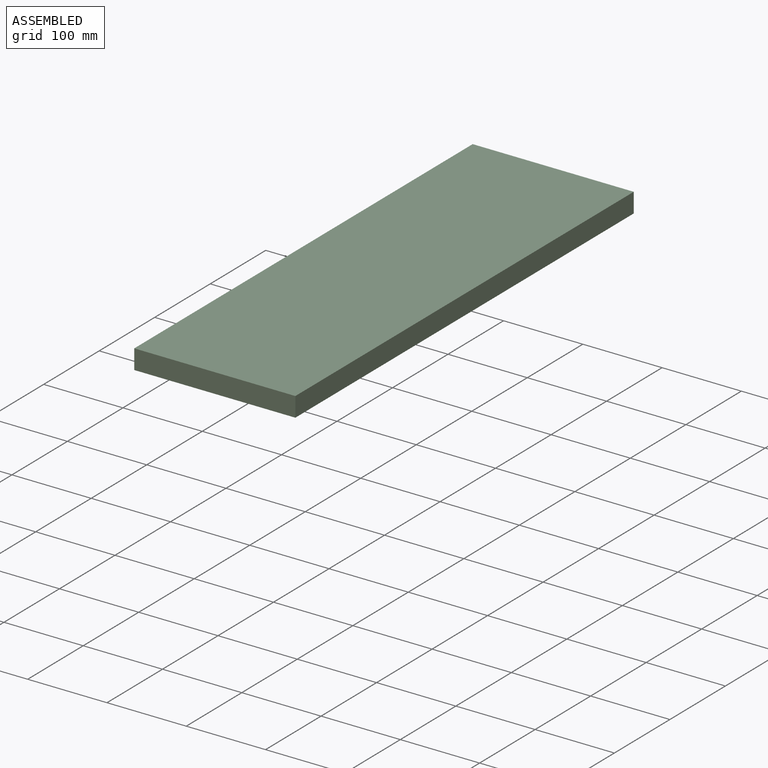
[diagram: assembled view]
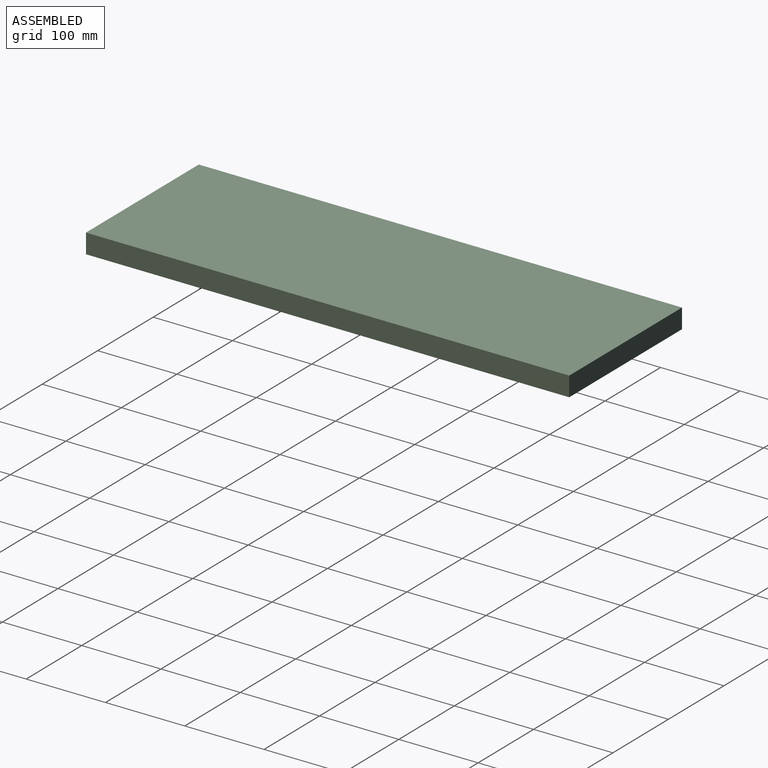
[diagram: assembled view, second angle]
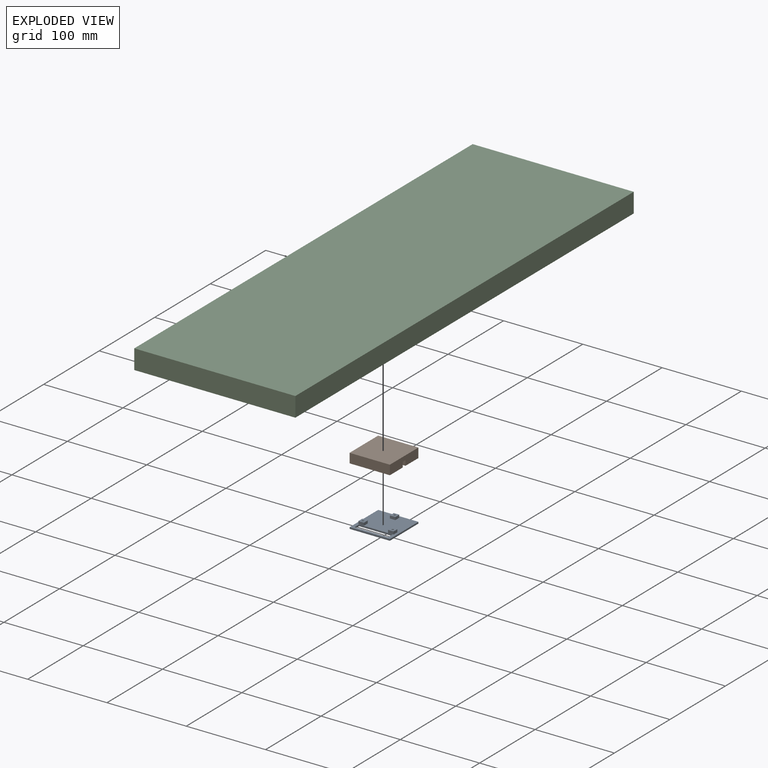
[diagram: exploded view]
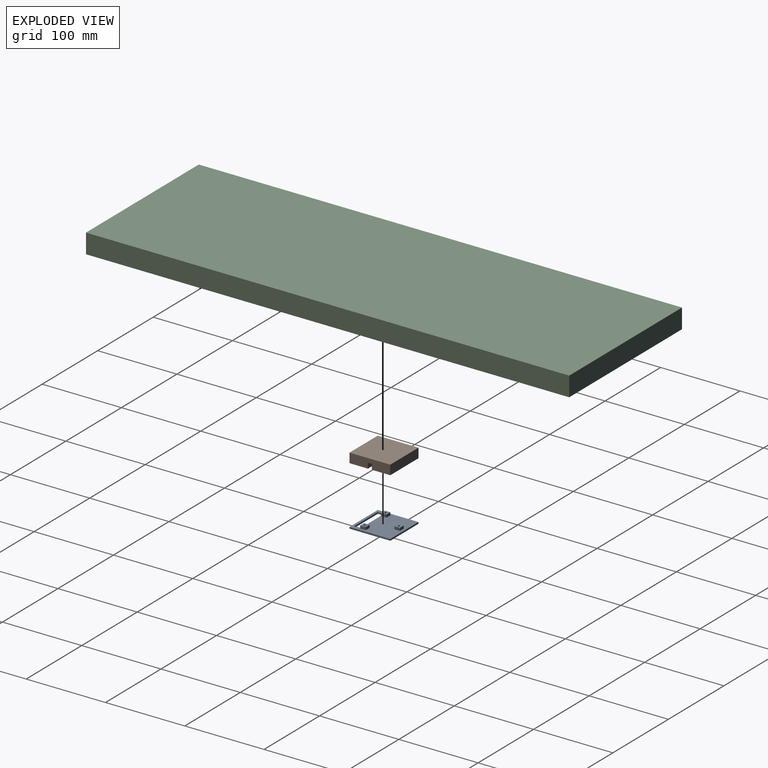
[diagram: exploded view, second angle]
ASSEMBLY  parts=3 mates=2
PART A: 31 faces, bbox 50.8x51.4x5.5 mm
  f0: plane 51.4x50.8mm, normal (0,0,1), area 2124.9mm2, adj f1,f2,f3,f4,f5,f6,f9,f10
  f1: plane 42.4x2mm, normal (0,-1,0), area 84.8mm2, adj f0,f2,f9,f12
  f2: plane 8x2mm, normal (1,0,0), area 16mm2, adj f0,f1,f3,f12
  f3: plane 42.4x2mm, normal (0,1,0), area 84.8mm2, adj f0,f2,f9,f12
  f4: plane 50.8x2mm, normal (0,-1,0), area 101.6mm2, adj f0,f5,f10,f12
  f5: plane 51.4x2mm, normal (-1,0,0), area 102.8mm2, adj f0,f4,f6,f12
  f6: plane 50.8x2mm, normal (0,1,0), area 101.6mm2, adj f0,f5,f10,f12
  f7: cylinder r=1.25mm len=4.5mm, axis (0,0,1), area 35.3mm2, adj f17,f30
  f8: cylinder r=1.25mm len=4.5mm, axis (0,0,1), area 35.3mm2, adj f22,f28
  f9: plane 8x2mm, normal (-1,0,0), area 16mm2, adj f0,f1,f3,f12
  f10: plane 51.4x2mm, normal (1,0,0), area 102.8mm2, adj f0,f4,f6,f12
  f11: cylinder r=1.25mm len=4.5mm, axis (0,0,1), area 35.3mm2, adj f27,f29
  f12: plane 51.4x50.8mm, normal (0,0,-1), area 2224.2mm2, adj f1,f2,f3,f4,f5,f6,f9,f10
  f13: plane 7x3.5mm, normal (0,1,0), area 24.5mm2, adj f0,f14,f16,f17
  f14: plane 7x3.5mm, normal (1,0,0), area 24.5mm2, adj f0,f13,f15,f17
  f15: plane 7x3.5mm, normal (0,-1,0), area 24.5mm2, adj f0,f14,f16,f17
  f16: plane 7x3.5mm, normal (-1,0,0), area 24.5mm2, adj f0,f13,f15,f17
  f17: plane 7x7mm, normal (0,0,1), area 44.1mm2, adj f7,f13,f14,f15,f16
  f18: plane 7x3.5mm, normal (0,1,0), area 24.5mm2, adj f0,f19,f21,f22
  f19: plane 7x3.5mm, normal (1,0,0), area 24.5mm2, adj f0,f18,f20,f22
  f20: plane 7x3.5mm, normal (0,-1,0), area 24.5mm2, adj f0,f19,f21,f22
  f21: plane 7x3.5mm, normal (-1,0,0), area 24.5mm2, adj f0,f18,f20,f22
  f22: plane 7x7mm, normal (0,0,1), area 44.1mm2, adj f8,f18,f19,f20,f21
  f23: plane 7x3.5mm, normal (0,1,0), area 24.5mm2, adj f0,f24,f26,f27
  f24: plane 7x3.5mm, normal (1,0,0), area 24.5mm2, adj f0,f23,f25,f27
  f25: plane 7x3.5mm, normal (0,-1,0), area 24.5mm2, adj f0,f24,f26,f27
  f26: plane 7x3.5mm, normal (-1,0,0), area 24.5mm2, adj f0,f23,f25,f27
  f27: plane 7x7mm, normal (0,0,1), area 44.1mm2, adj f11,f23,f24,f25,f26
  f28: cone r=1.25mm half-angle=45deg, axis (0,0,-1), area 15.6mm2, adj f8,f12
  f29: cone r=1.25mm half-angle=45deg, axis (0,0,-1), area 15.6mm2, adj f11,f12
  f30: cone r=1.25mm half-angle=45deg, axis (0,0,-1), area 15.6mm2, adj f7,f12
PART B: 42 faces, bbox 50.8x51.4x12 mm
  f0: plane 30x10mm, normal (-1,0,0), area 219.4mm2, adj f1,f7,f11,f19,f20,f24,f26,f27
  f1: plane 10.4x6.5mm, normal (0,-1,0), area 67.6mm2, adj f0,f2,f11,f32
  f2: plane 51.4x12mm, normal (1,0,0), area 584.3mm2, adj f1,f3,f11,f18,f19,f24,f32,f41
  f3: plane 50.8x12mm, normal (0,1,0), area 609.6mm2, adj f2,f4,f11,f41
  f4: plane 51.4x12mm, normal (-1,0,0), area 584.3mm2, adj f3,f5,f11,f17,f18,f24,f31,f41
  f5: plane 10.4x6.5mm, normal (0,-1,0), area 67.6mm2, adj f4,f6,f11,f31
  f6: plane 30x10mm, normal (1,0,0), area 219.4mm2, adj f5,f7,f11,f16,f17,f24,f28,f30
  f7: plane 30x10mm, normal (0,-1,0), area 251.9mm2, adj f0,f6,f8,f10,f11,f34,f40
  f8: plane 7.4x6.5mm, normal (1,0,0), area 48.1mm2, adj f7,f9,f11,f34
  f9: plane 7.4x6.5mm, normal (0,-1,0), area 48.1mm2, adj f8,f10,f11,f34
  f10: plane 7.4x6.5mm, normal (-1,0,0), area 48.1mm2, adj f7,f9,f11,f34
  f11: plane 50.8x23.2mm, normal (0,0,-1), area 739.8mm2, adj f0,f1,f2,f3,f4,f5,f6,f7
  f12: plane 42.4x10mm, normal (0,1,0), area 391.5mm2, adj f13,f23,f24,f35,f36,f40
  f13: plane 8x3mm, normal (1,0,0), area 24mm2, adj f12,f28,f35,f40
  f14: plane 6.5x3.52mm, normal (0,1,0), area 15.3mm2, adj f15,f24,f30,f35
  f15: plane 7.4x6.5mm, normal (1,0,0), area 48.1mm2, adj f14,f16,f24,f30
  f16: plane 7.4x6.5mm, normal (0,-1,0), area 48.1mm2, adj f6,f15,f24,f30
  f17: plane 10.4x6.5mm, normal (0,1,0), area 67.6mm2, adj f4,f6,f24,f31
  f18: plane 50.8x12mm, normal (0,-1,0), area 609.6mm2, adj f2,f4,f24,f41
  f19: plane 10.4x6.5mm, normal (0,1,0), area 67.6mm2, adj f0,f2,f24,f32
  f20: plane 7.4x6.5mm, normal (0,-1,0), area 48.1mm2, adj f0,f21,f24,f27
  f21: plane 7.4x6.5mm, normal (-1,0,0), area 48.1mm2, adj f20,f22,f24,f27
  f22: plane 6.5x3.52mm, normal (0,1,0), area 15.3mm2, adj f21,f24,f27,f36
  f23: plane 8x3mm, normal (-1,0,0), area 24mm2, adj f12,f26,f36,f40
  f24: plane 50.8x23.2mm, normal (0,0,-1), area 363.8mm2, adj f0,f2,f4,f6,f12,f14,f15,f16
  f25: cylinder r=1.25mm len=3.5mm, axis (0,0,1), area 27.5mm2, adj f27,f39
  f26: plane 3.88x3.5mm, normal (0,-1,0), area 13mm2, adj f0,f23,f27,f36,f40
  f27: plane 7.4x7.4mm, normal (0,0,-1), area 49.9mm2, adj f0,f20,f21,f22,f25,f26
  f28: plane 3.88x3.5mm, normal (0,-1,0), area 13mm2, adj f6,f13,f30,f35,f40
  f29: cylinder r=1.25mm len=3.5mm, axis (0,0,1), area 27.5mm2, adj f30,f38
  f30: plane 7.4x7.4mm, normal (0,0,-1), area 49.9mm2, adj f6,f14,f15,f16,f28,f29
  f31: plane 10.4x5mm, normal (0,0,-1), area 52mm2, adj f4,f5,f6,f17
  f32: plane 10.4x5mm, normal (0,0,-1), area 52mm2, adj f0,f1,f2,f19
  f33: cylinder r=1.25mm len=3.5mm, axis (0,0,1), area 27.5mm2, adj f34,f37
  f34: plane 7.4x7.4mm, normal (0,0,-1), area 49.9mm2, adj f7,f8,f9,f10,f33
  f35: plane 8x7mm, normal (0.94,0,-0.34), area 59.5mm2, adj f12,f13,f14,f24,f28
  f36: plane 8x7mm, normal (-0.94,0,-0.34), area 59.5mm2, adj f12,f22,f23,f24,f26
  f37: plane 2.5x2.5mm, normal (0,0,-1), area 4.9mm2, adj f33
  f38: plane 2.5x2.5mm, normal (0,0,-1), area 4.9mm2, adj f29
  f39: plane 2.5x2.5mm, normal (0,0,-1), area 4.9mm2, adj f25
  f40: plane 38x37.4mm, normal (0,0,-1), area 1199.2mm2, adj f0,f6,f7,f12,f13,f23,f26,f28
  f41: plane 51.4x50.8mm, normal (0,0,1), area 2611.1mm2, adj f2,f3,f4,f18
PART C: 11 faces, bbox 203.2x609.6x24.7 mm
  f0: plane 609.6x24.7mm, normal (1,0,0), area 15057.1mm2, adj f1,f3,f4,f5
  f1: plane 203.2x24.7mm, normal (0,1,0), area 5019mm2, adj f0,f2,f4,f5
  f2: plane 609.6x24.7mm, normal (-1,0,0), area 15057.1mm2, adj f1,f3,f4,f5
  f3: plane 203.2x24.7mm, normal (0,-1,0), area 5019mm2, adj f0,f2,f4,f5
  f4: plane 609.6x203.2mm, normal (0,0,-1), area 121259.6mm2, adj f0,f1,f2,f3,f6,f7,f8,f9
  f5: plane 609.6x203.2mm, normal (0,0,1), area 123870.7mm2, adj f0,f1,f2,f3
  f6: plane 51.4x14mm, normal (1,0,0), area 719.6mm2, adj f4,f7,f9,f10
  f7: plane 50.8x14mm, normal (0,1,0), area 711.2mm2, adj f4,f6,f8,f10
  f8: plane 51.4x14mm, normal (-1,0,0), area 719.6mm2, adj f4,f7,f9,f10
  f9: plane 50.8x14mm, normal (0,-1,0), area 711.2mm2, adj f4,f6,f8,f10
  f10: plane 51.4x50.8mm, normal (0,0,-1), area 2611.1mm2, adj f6,f7,f8,f9
PLACE A rot(axis=(0,0,-1),0deg) t=(-1.03,0.55,-35.05)mm
PLACE B t=(-1.03,0.55,-26.82)mm
PLACE C t=(-1.03,0.55,0)mm fixed
MATE slider B.f41 <-> C.f10  axis (0,0,1) through (-26.43,26.25,-24.82)mm
MATE slider A.f11 <-> B.f29  axis (0,0,1) through (-19.73,-10.45,-41.55)mm
